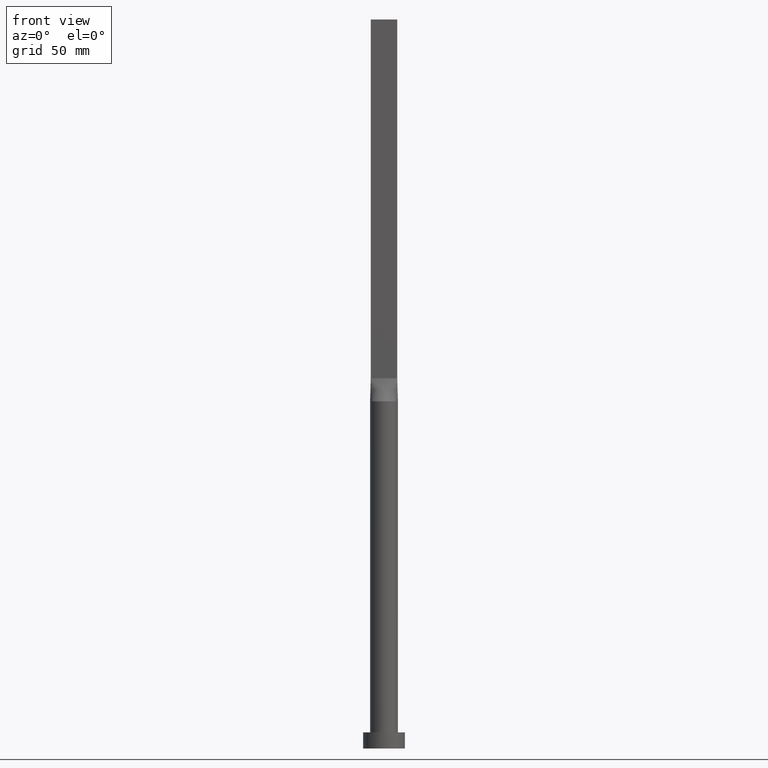
[diagram: clean part render]
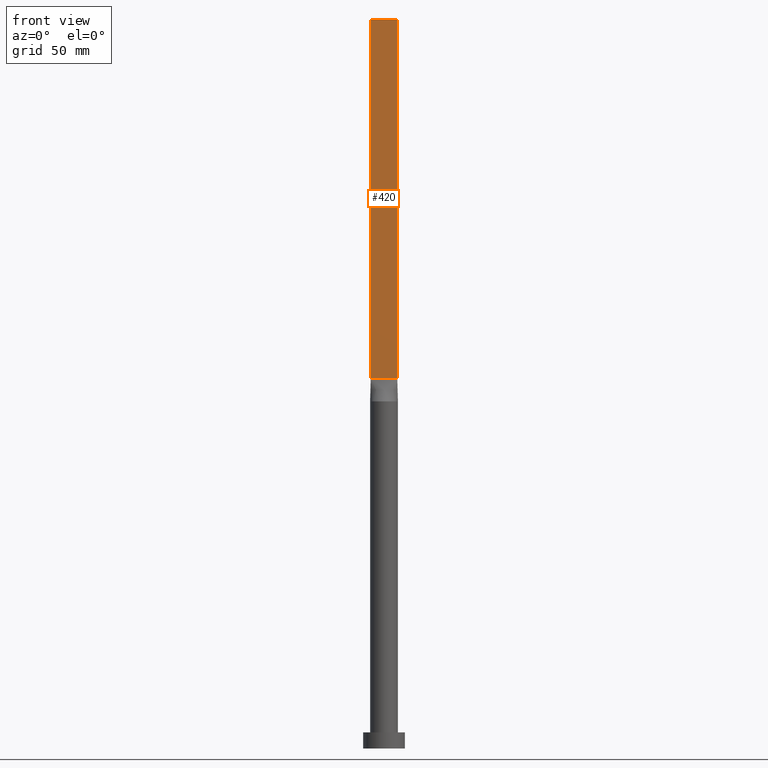
[diagram: same view with one face highlighted and labeled with its STEP entity id]
A machine part, front view. The second image highlights one B-rep face of the part: STEP entity #420.
In plain terms, the highlighted planar face has unit normal (0, 1, -0).
Its self-contained STEP definition (entity closure, byte-faithful):
#12 = CARTESIAN_POINT ( 'NONE',  ( -5.750000000000000000, -1.249999999999999112, 160.0000000000000000 ) ) ;
#19 = ORIENTED_EDGE ( 'NONE', *, *, #465, .T. ) ;
#55 = CARTESIAN_POINT ( 'NONE',  ( -5.750000000000000000, -1.249999999999999112, 315.0000000000000000 ) ) ;
#70 = LINE ( 'NONE', #527, #116 ) ;
#93 = DIRECTION ( 'NONE',  ( 1.000000000000000000, -5.656706986880892860E-17, 0.000000000000000000 ) ) ;
#108 = VECTOR ( 'NONE', #167, 1000.000000000000000 ) ;
#116 = VECTOR ( 'NONE', #251, 1000.000000000000000 ) ;
#167 = DIRECTION ( 'NONE',  ( -0.000000000000000000, -0.000000000000000000, -1.000000000000000000 ) ) ;
#181 = ORIENTED_EDGE ( 'NONE', *, *, #354, .T. ) ;
#182 = VECTOR ( 'NONE', #93, 1000.000000000000000 ) ;
#206 = EDGE_CURVE ( 'NONE', #294, #318, #70, .T. ) ;
#232 = FACE_OUTER_BOUND ( 'NONE', #288, .T. ) ;
#237 = DIRECTION ( 'NONE',  ( -1.000000000000000000, 5.656706986880894093E-17, 0.000000000000000000 ) ) ;
#251 = DIRECTION ( 'NONE',  ( 1.000000000000000000, -5.656706986880892860E-17, 0.000000000000000000 ) ) ;
#281 = CARTESIAN_POINT ( 'NONE',  ( -5.750000000000000000, -1.249999999999999112, 315.0000000000000000 ) ) ;
#283 = CARTESIAN_POINT ( 'NONE',  ( 5.750000000000000000, -1.249999999999999778, 160.0000000000000000 ) ) ;
#288 = EDGE_LOOP ( 'NONE', ( #19, #395, #523, #181 ) ) ;
#294 = VERTEX_POINT ( 'NONE', #449 ) ;
#318 = VERTEX_POINT ( 'NONE', #398 ) ;
#321 = EDGE_CURVE ( 'NONE', #318, #549, #547, .T. ) ;
#354 = EDGE_CURVE ( 'NONE', #294, #360, #566, .T. ) ;
#360 = VERTEX_POINT ( 'NONE', #12 ) ;
#369 = CARTESIAN_POINT ( 'NONE',  ( -5.750000000000000000, -1.249999999999999112, 160.0000000000000000 ) ) ;
#371 = AXIS2_PLACEMENT_3D ( 'NONE', #55, #415, #237 ) ;
#395 = ORIENTED_EDGE ( 'NONE', *, *, #321, .F. ) ;
#398 = CARTESIAN_POINT ( 'NONE',  ( 5.750000000000000000, -1.249999999999999778, 315.0000000000000000 ) ) ;
#412 = PLANE ( 'NONE',  #371 ) ;
#415 = DIRECTION ( 'NONE',  ( 5.656706986880894093E-17, 1.000000000000000000, -0.000000000000000000 ) ) ;
#420 = ADVANCED_FACE ( 'NONE', ( #232 ), #412, .F. ) ;
#439 = VECTOR ( 'NONE', #513, 1000.000000000000000 ) ;
#449 = CARTESIAN_POINT ( 'NONE',  ( -5.750000000000000000, -1.249999999999999112, 315.0000000000000000 ) ) ;
#465 = EDGE_CURVE ( 'NONE', #360, #549, #503, .T. ) ;
#495 = CARTESIAN_POINT ( 'NONE',  ( 5.750000000000000000, -1.249999999999999778, 315.0000000000000000 ) ) ;
#503 = LINE ( 'NONE', #369, #182 ) ;
#513 = DIRECTION ( 'NONE',  ( -0.000000000000000000, -0.000000000000000000, -1.000000000000000000 ) ) ;
#523 = ORIENTED_EDGE ( 'NONE', *, *, #206, .F. ) ;
#527 = CARTESIAN_POINT ( 'NONE',  ( -5.750000000000000000, -1.249999999999999112, 315.0000000000000000 ) ) ;
#547 = LINE ( 'NONE', #495, #108 ) ;
#549 = VERTEX_POINT ( 'NONE', #283 ) ;
#566 = LINE ( 'NONE', #281, #439 ) ;